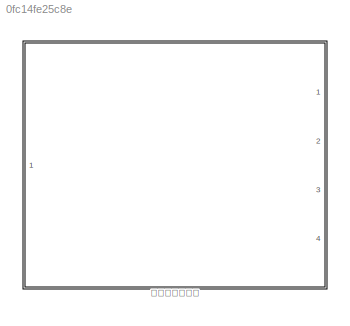
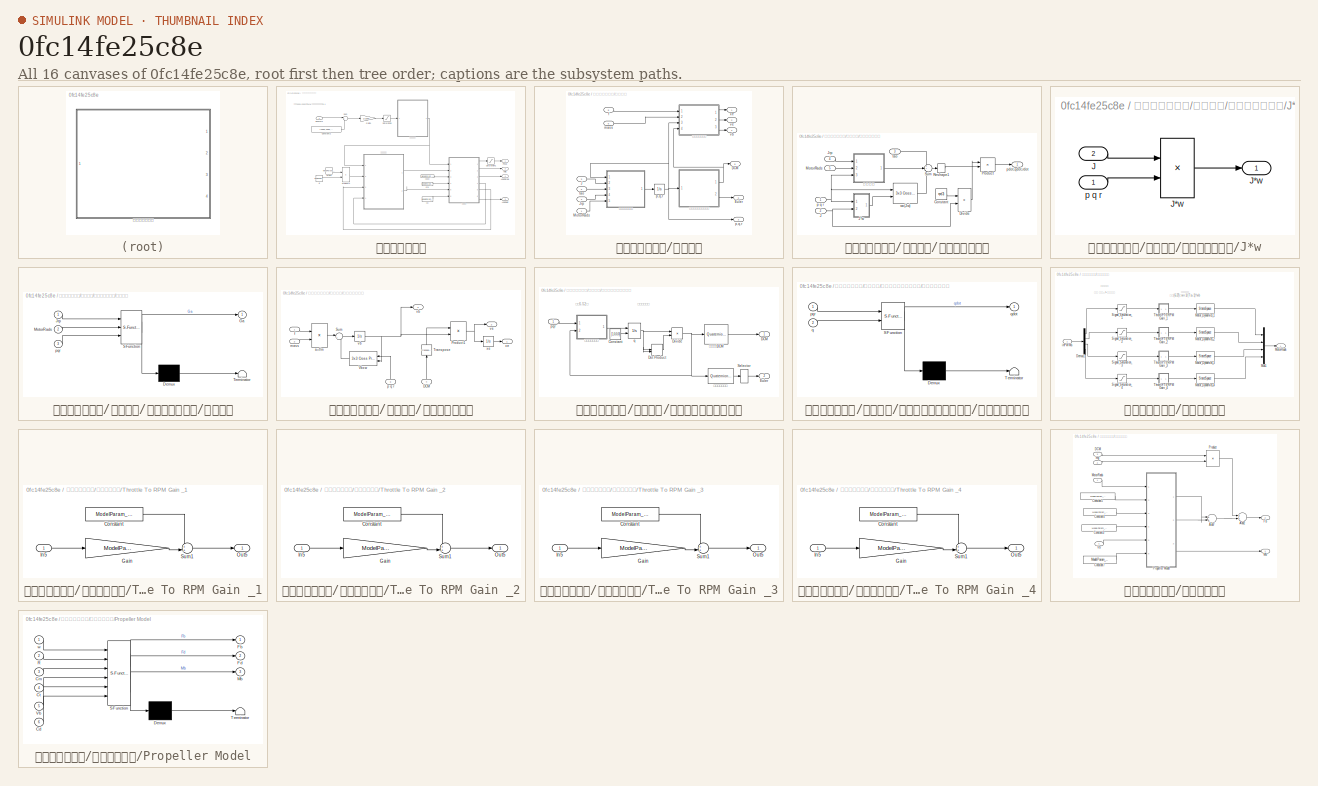
[diagram: thumbnail index - all 16 canvases of the model, root first then tree order]
MODEL slx_0fc14fe25c8e
KIND model
CONFIG AbsTol = auto
CONFIG EnableMultiTasking = off
CONFIG FixedStep = auto
CONFIG MaxStep = auto
CONFIG MinStep = auto
CONFIG RelTol = 1e-3
CONFIG SampleTimeConstraint = Unconstrained
CONFIG Solver = VariableStepAuto
CONFIG SolverName = VariableStepAuto
CONFIG StartTime = 0.0
CONFIG StopTime = 10.0
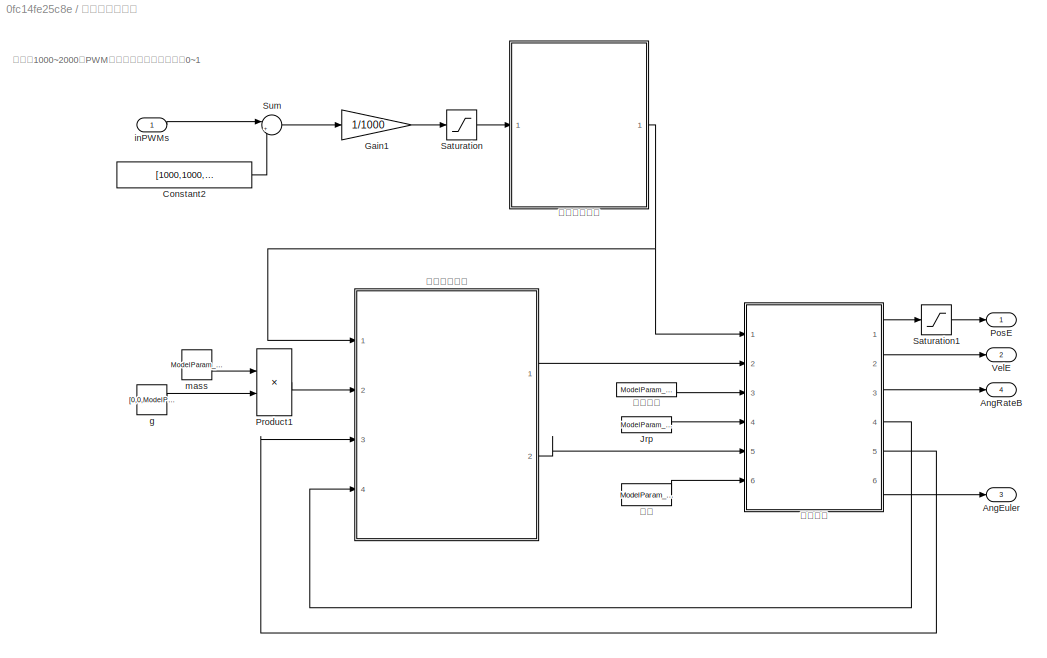
BLOCK [SubSystem] 四旋翼刚体模型
  Ports = [1, 4]
  RequestExecContextInheritance = off
  Variant = off
BLOCK [Outport] 四旋翼刚体模型/AngEuler
  IconDisplay = Port number
  Port = 3
BLOCK [Outport] 四旋翼刚体模型/AngRateB
  IconDisplay = Port number
  Port = 4
BLOCK [Constant] 四旋翼刚体模型/Constant2
  Value = [1000,1000,1000,1000]
BLOCK [Gain] 四旋翼刚体模型/Gain1
  Gain = 1/1000
  OutDataTypeStr = Inherit: Inherit via internal rule
  ParamDataTypeStr = Inherit: Inherit via internal rule
  SaturateOnIntegerOverflow = off
BLOCK [Constant] 四旋翼刚体模型/Jrp
  Value = ModelParam_motorJm
BLOCK [Outport] 四旋翼刚体模型/PosE
  IconDisplay = Port number
BLOCK [Product] 四旋翼刚体模型/Product1
  InputSameDT = off
  OutDataTypeStr = Inherit: Inherit via internal rule
  Ports = [2, 1]
  RndMeth = Floor
  SaturateOnIntegerOverflow = off
BLOCK [Saturate] 四旋翼刚体模型/Saturation
  InputPortMap = u0
  LowerLimit = 0
  Ports = [1, 1]
  UpperLimit = 1
BLOCK [Saturate] 四旋翼刚体模型/Saturation1
  InputPortMap = u0
  LowerLimit = [-inf,-inf,-inf]
  Ports = [1, 1]
  UpperLimit = [inf,inf,0]
BLOCK [Sum] 四旋翼刚体模型/Sum
  IconShape = round
  InputSameDT = off
  Inputs = |+-
  OutDataTypeStr = Inherit: Inherit via internal rule
  Ports = [2, 1]
  SaturateOnIntegerOverflow = off
BLOCK [Outport] 四旋翼刚体模型/VelE
  IconDisplay = Port number
  Port = 2
BLOCK [Constant] 四旋翼刚体模型/g
  Value = [0,0,ModelParam_envGravityAcc]
BLOCK [Inport] 四旋翼刚体模型/inPWMs
  IconDisplay = Port number
BLOCK [Constant] 四旋翼刚体模型/mass
  Value = ModelParam_uavMass
BLOCK [SubSystem] 四旋翼刚体模型/刚体模型
  Ports = [6, 6]
  RequestExecContextInheritance = off
  Variant = off
BLOCK [Outport] 四旋翼刚体模型/刚体模型/DCM
  IconDisplay = Port number
  Port = 5
BLOCK [Outport] 四旋翼刚体模型/刚体模型/Euler
  IconDisplay = Port number
  Port = 6
BLOCK [Inport] 四旋翼刚体模型/刚体模型/J
  IconDisplay = Port number
  Port = 3
BLOCK [Inport] 四旋翼刚体模型/刚体模型/Jrp
  IconDisplay = Port number
  Port = 4
BLOCK [Inport] 四旋翼刚体模型/刚体模型/MotorRads
  IconDisplay = Port number
BLOCK [Inport] 四旋翼刚体模型/刚体模型/f
  IconDisplay = Port number
  Port = 5
BLOCK [Inport] 四旋翼刚体模型/刚体模型/mass
  IconDisplay = Port number
  Port = 6
BLOCK [Integrator] 四旋翼刚体模型/刚体模型/p,q,r
  Ports = [1, 1]
BLOCK [Outport] 四旋翼刚体模型/刚体模型/p,q,r 
  IconDisplay = Port number
  Port = 3
BLOCK [Inport] 四旋翼刚体模型/刚体模型/tao
  IconDisplay = Port number
  Port = 2
BLOCK [Outport] 四旋翼刚体模型/刚体模型/vb 
  IconDisplay = Port number
  Port = 4
BLOCK [Outport] 四旋翼刚体模型/刚体模型/ve
  IconDisplay = Port number
  Port = 2
BLOCK [Outport] 四旋翼刚体模型/刚体模型/xe 
  IconDisplay = Port number
BLOCK [SubSystem] 四旋翼刚体模型/刚体模型/刚体动力学模型
  Ports = [5, 1]
  RequestExecContextInheritance = off
  Variant = off
BLOCK [Constant] 四旋翼刚体模型/刚体模型/刚体动力学模型/Constant
  Value = eye(3)
BLOCK [Product] 四旋翼刚体模型/刚体模型/刚体动力学模型/Divide
  InputSameDT = off
  Inputs = */
  Multiplication = Matrix(*)
  OutDataTypeStr = Inherit: Inherit via internal rule
  Ports = [2, 1]
  RndMeth = Floor
  SaturateOnIntegerOverflow = off
BLOCK [Inport] 四旋翼刚体模型/刚体模型/刚体动力学模型/J
  IconDisplay = Port number
  Port = 2
BLOCK [SubSystem] 四旋翼刚体模型/刚体模型/刚体动力学模型/J*w
  Ports = [2, 1]
  RequestExecContextInheritance = off
  Variant = off
BLOCK [Inport] 四旋翼刚体模型/刚体模型/刚体动力学模型/J*w/J
  IconDisplay = Port number
  Port = 2
BLOCK [Product] 四旋翼刚体模型/刚体模型/刚体动力学模型/J*w/J*w
  InputSameDT = off
  Multiplication = Matrix(*)
  OutDataTypeStr = Inherit: Inherit via internal rule
  Ports = [2, 1]
  RndMeth = Floor
  SaturateOnIntegerOverflow = off
BLOCK [Outport] 四旋翼刚体模型/刚体模型/刚体动力学模型/J*w/J*w 
  IconDisplay = Port number
BLOCK [Inport] 四旋翼刚体模型/刚体模型/刚体动力学模型/J*w/p q r
  IconDisplay = Port number
BLOCK [Inport] 四旋翼刚体模型/刚体模型/刚体动力学模型/Jrp
  IconDisplay = Port number
  Port = 4
BLOCK [Inport] 四旋翼刚体模型/刚体模型/刚体动力学模型/MotorRads
  IconDisplay = Port number
  Port = 5
BLOCK [Product] 四旋翼刚体模型/刚体模型/刚体动力学模型/Product
  InputSameDT = off
  Multiplication = Matrix(*)
  OutDataTypeStr = Inherit: Inherit via internal rule
  Ports = [2, 1]
  RndMeth = Floor
  SaturateOnIntegerOverflow = off
BLOCK [Reshape] 四旋翼刚体模型/刚体模型/刚体动力学模型/Reshape1
  OutputDimensionality = Column vector (2-D)
  Ports = [1, 1]
BLOCK [Sum] 四旋翼刚体模型/刚体模型/刚体动力学模型/Sum
  IconShape = round
  InputSameDT = off
  Inputs = 3
  OutDataTypeStr = Inherit: Inherit via internal rule
  Ports = [3, 1]
  SaturateOnIntegerOverflow = off
BLOCK [Inport] 四旋翼刚体模型/刚体模型/刚体动力学模型/p q r
  IconDisplay = Port number
BLOCK [Outport] 四旋翼刚体模型/刚体模型/刚体动力学模型/pdot,qdot,rdot
  IconDisplay = Port number
BLOCK [Inport] 四旋翼刚体模型/刚体模型/刚体动力学模型/tao
  IconDisplay = Port number
  Port = 3
BLOCK [Reference] 四旋翼刚体模型/刚体模型/刚体动力学模型/wx(Jw)  REF=aerolibutil/3x3 Cross Product
  Ports = [2, 1]
  SourceBlock = aerolibutil/3x3 Cross Product
  SourceType = CrossProduct
BLOCK [SubSystem] 四旋翼刚体模型/刚体模型/刚体动力学模型/陀螺力矩
  ErrorFcn = Stateflow.Translate.translate
  PermitHierarchicalResolution = ExplicitOnly
  Ports = [3, 1]
  RequestExecContextInheritance = off
  SFBlockType = MATLAB Function
  TreatAsAtomicUnit = on
  Variant = off
BLOCK [Demux] 四旋翼刚体模型/刚体模型/刚体动力学模型/陀螺力矩/ Demux 
  Outputs = 1
  Ports = [1, 1]
BLOCK [S-Function] 四旋翼刚体模型/刚体模型/刚体动力学模型/陀螺力矩/ SFunction 
  EnableBusSupport = on
  FunctionName = sf_sfun
  PortCounts = [3 2]
  Ports = [3, 2]
  SFcnIsStateOwnerBlock = off
  SFunctionDeploymentMode = off
  Tag = Stateflow S-Function dynamics 6
BLOCK [Terminator] 四旋翼刚体模型/刚体模型/刚体动力学模型/陀螺力矩/ Terminator 
BLOCK [Outport] 四旋翼刚体模型/刚体模型/刚体动力学模型/陀螺力矩/Ga
  IconDisplay = Port number
BLOCK [Inport] 四旋翼刚体模型/刚体模型/刚体动力学模型/陀螺力矩/Jrp
  IconDisplay = Port number
BLOCK [Inport] 四旋翼刚体模型/刚体模型/刚体动力学模型/陀螺力矩/MotorRads
  IconDisplay = Port number
  Port = 2
BLOCK [Inport] 四旋翼刚体模型/刚体模型/刚体动力学模型/陀螺力矩/pqr
  IconDisplay = Port number
  Port = 3
BLOCK [SubSystem] 四旋翼刚体模型/刚体模型/刚体运动学模型
  Ports = [4, 3]
  RequestExecContextInheritance = off
  Variant = off
BLOCK [Inport] 四旋翼刚体模型/刚体模型/刚体运动学模型/DCM
  IconDisplay = Port number
  Port = 4
BLOCK [Product] 四旋翼刚体模型/刚体模型/刚体运动学模型/Product1
  InputSameDT = off
  Multiplication = Matrix(*)
  OutDataTypeStr = Inherit: Inherit via internal rule
  Ports = [2, 1]
  RndMeth = Floor
  SaturateOnIntegerOverflow = off
BLOCK [Sum] 四旋翼刚体模型/刚体模型/刚体运动学模型/Sum
  IconShape = round
  InputSameDT = off
  Inputs = |+-
  OutDataTypeStr = Inherit: Inherit via internal rule
  Ports = [2, 1]
  SaturateOnIntegerOverflow = off
BLOCK [Math] 四旋翼刚体模型/刚体模型/刚体运动学模型/Transpose
  Operator = transpose
  Ports = [1, 1]
BLOCK [Reference] 四旋翼刚体模型/刚体模型/刚体运动学模型/Vbxw  REF=aerolibutil/3x3 Cross Product
  Ports = [2, 1]
  SourceBlock = aerolibutil/3x3 Cross Product
  SourceType = CrossProduct
BLOCK [Product] 四旋翼刚体模型/刚体模型/刚体运动学模型/a=f//m
  InputSameDT = off
  Inputs = */
  OutDataTypeStr = Inherit: Inherit via internal rule
  Ports = [2, 1]
  RndMeth = Floor
  SaturateOnIntegerOverflow = off
BLOCK [Inport] 四旋翼刚体模型/刚体模型/刚体运动学模型/f
  IconDisplay = Port number
BLOCK [Inport] 四旋翼刚体模型/刚体模型/刚体运动学模型/mass
  IconDisplay = Port number
  Port = 2
BLOCK [Inport] 四旋翼刚体模型/刚体模型/刚体运动学模型/p q r
  IconDisplay = Port number
  Port = 3
BLOCK [Integrator] 四旋翼刚体模型/刚体模型/刚体运动学模型/vb
  Ports = [1, 1]
BLOCK [Outport] 四旋翼刚体模型/刚体模型/刚体运动学模型/vb 
  IconDisplay = Port number
  Port = 3
BLOCK [Outport] 四旋翼刚体模型/刚体模型/刚体运动学模型/ve
  IconDisplay = Port number
  Port = 2
BLOCK [Integrator] 四旋翼刚体模型/刚体模型/刚体运动学模型/xe
  Ports = [1, 1]
BLOCK [Outport] 四旋翼刚体模型/刚体模型/刚体运动学模型/xe 
  IconDisplay = Port number
BLOCK [SubSystem] 四旋翼刚体模型/刚体模型/计算旋转矩阵和欧拉角
  Ports = [1, 2]
  RequestExecContextInheritance = off
  Variant = off
BLOCK [Constant] 四旋翼刚体模型/刚体模型/计算旋转矩阵和欧拉角/Constant
  Value = [1,0,0,0]
BLOCK [Outport] 四旋翼刚体模型/刚体模型/计算旋转矩阵和欧拉角/DCM
  IconDisplay = Port number
BLOCK [Product] 四旋翼刚体模型/刚体模型/计算旋转矩阵和欧拉角/Divide
  InputSameDT = off
  Inputs = */
  OutDataTypeStr = Inherit: Inherit via internal rule
  Ports = [2, 1]
  RndMeth = Floor
  SaturateOnIntegerOverflow = off
BLOCK [DotProduct] 四旋翼刚体模型/刚体模型/计算旋转矩阵和欧拉角/Dot Product
  OutDataTypeStr = Inherit: Inherit via internal rule
BLOCK [Outport] 四旋翼刚体模型/刚体模型/计算旋转矩阵和欧拉角/Euler
  IconDisplay = Port number
  Port = 2
BLOCK [Selector] 四旋翼刚体模型/刚体模型/计算旋转矩阵和欧拉角/Selector
  IndexOptions = Index vector (dialog)
  Indices = [3 2 1]
  InputPortWidth = 3
  OutputSizes = 1
  Ports = [1, 1]
BLOCK [Inport] 四旋翼刚体模型/刚体模型/计算旋转矩阵和欧拉角/pqr
  IconDisplay = Port number
BLOCK [Integrator] 四旋翼刚体模型/刚体模型/计算旋转矩阵和欧拉角/q
  InitialConditionSource = external
  Ports = [2, 1]
BLOCK [Reference] 四旋翼刚体模型/刚体模型/计算旋转矩阵和欧拉角/四元数转DCM  REF=aerolibtransform2/Quaternions to 
Direction Cosine Matrix
  Ports = [1, 1]
  SourceBlock = aerolibtransform2/Quaternions to \nDirection Cosine Matrix
  SourceType = Quaternion2DCM
BLOCK [Reference] 四旋翼刚体模型/刚体模型/计算旋转矩阵和欧拉角/四元数转欧拉角  REF=aerolibtransform2/Quaternions to Rotation Angles
  AttributesFormatString = Rotation Order: %<rotationOrder>
  Ports = [1, 1]
  SourceBlock = aerolibtransform2/Quaternions to Rotation Angles
  SourceType = Quat2Ang
BLOCK [SubSystem] 四旋翼刚体模型/刚体模型/计算旋转矩阵和欧拉角/基于四元数模型
  ErrorFcn = Stateflow.Translate.translate
  PermitHierarchicalResolution = ExplicitOnly
  Ports = [2, 1]
  RequestExecContextInheritance = off
  SFBlockType = MATLAB Function
  TreatAsAtomicUnit = on
  Variant = off
BLOCK [Demux] 四旋翼刚体模型/刚体模型/计算旋转矩阵和欧拉角/基于四元数模型/ Demux 
  Outputs = 1
  Ports = [1, 1]
BLOCK [S-Function] 四旋翼刚体模型/刚体模型/计算旋转矩阵和欧拉角/基于四元数模型/ SFunction 
  EnableBusSupport = on
  FunctionName = sf_sfun
  PortCounts = [2 2]
  Ports = [2, 2]
  SFcnIsStateOwnerBlock = off
  SFunctionDeploymentMode = off
  Tag = Stateflow S-Function dynamics 5
BLOCK [Terminator] 四旋翼刚体模型/刚体模型/计算旋转矩阵和欧拉角/基于四元数模型/ Terminator 
BLOCK [Inport] 四旋翼刚体模型/刚体模型/计算旋转矩阵和欧拉角/基于四元数模型/pqr
  IconDisplay = Port number
BLOCK [Inport] 四旋翼刚体模型/刚体模型/计算旋转矩阵和欧拉角/基于四元数模型/q
  IconDisplay = Port number
  Port = 2
BLOCK [Outport] 四旋翼刚体模型/刚体模型/计算旋转矩阵和欧拉角/基于四元数模型/qdot
  IconDisplay = Port number
BLOCK [SubSystem] 四旋翼刚体模型/动力单元模型
  Ports = [1, 1]
  RequestExecContextInheritance = off
  Variant = off
BLOCK [Demux] 四旋翼刚体模型/动力单元模型/Demux1
  DisplayOption = bar
  Ports = [1, 4]
BLOCK [Outport] 四旋翼刚体模型/动力单元模型/MotorRads
  IconDisplay = Port number
BLOCK [StateSpace] 四旋翼刚体模型/动力单元模型/Motor_Dynamics_1
  A = -1/ModelParam_motorT
  C = 1/ModelParam_motorT
  D = 0
  Ports = [1, 1]
  X0 = ModelInit_RPM*ModelParam_motorT
BLOCK [StateSpace] 四旋翼刚体模型/动力单元模型/Motor_Dynamics_2
  A = -1/ModelParam_motorT
  C = 1/ModelParam_motorT
  D = 0
  Ports = [1, 1]
  X0 = ModelInit_RPM*ModelParam_motorT
BLOCK [StateSpace] 四旋翼刚体模型/动力单元模型/Motor_Dynamics_3
  A = -1/ModelParam_motorT
  C = 1/ModelParam_motorT
  D = 0
  Ports = [1, 1]
  X0 = ModelInit_RPM*ModelParam_motorT
BLOCK [StateSpace] 四旋翼刚体模型/动力单元模型/Motor_Dynamics_4
  A = -1/ModelParam_motorT
  C = 1/ModelParam_motorT
  D = 0
  Ports = [1, 1]
  X0 = ModelInit_RPM*ModelParam_motorT
BLOCK [Mux] 四旋翼刚体模型/动力单元模型/Mux1
  DisplayOption = bar
  Ports = [4, 1]
BLOCK [Saturate] 四旋翼刚体模型/动力单元模型/Signal_Saturation_1
  InputPortMap = u0
  LowerLimit = 0
  Ports = [1, 1]
  UpperLimit = 1
BLOCK [Saturate] 四旋翼刚体模型/动力单元模型/Signal_Saturation_2
  InputPortMap = u0
  LowerLimit = 0
  Ports = [1, 1]
  UpperLimit = 1
BLOCK [Saturate] 四旋翼刚体模型/动力单元模型/Signal_Saturation_3
  InputPortMap = u0
  LowerLimit = 0
  Ports = [1, 1]
  UpperLimit = 1
BLOCK [Saturate] 四旋翼刚体模型/动力单元模型/Signal_Saturation_4
  InputPortMap = u0
  LowerLimit = 0
  Ports = [1, 1]
  UpperLimit = 1
BLOCK [SubSystem] 四旋翼刚体模型/动力单元模型/Throttle To RPM Gain _1
  Ports = [1, 1]
  RequestExecContextInheritance = off
  ShowPortLabels = none
  Variant = off
BLOCK [Constant] 四旋翼刚体模型/动力单元模型/Throttle To RPM Gain _1/Constant
  Value = ModelParam_motorWb
BLOCK [Gain] 四旋翼刚体模型/动力单元模型/Throttle To RPM Gain _1/Gain
  Gain = ModelParam_motorCr
  OutDataTypeStr = Inherit: Inherit via internal rule
  ParamDataTypeStr = Inherit: Inherit via internal rule
  SaturateOnIntegerOverflow = off
BLOCK [Inport] 四旋翼刚体模型/动力单元模型/Throttle To RPM Gain _1/In5
  IconDisplay = Port number
BLOCK [Outport] 四旋翼刚体模型/动力单元模型/Throttle To RPM Gain _1/Out5
  IconDisplay = Port number
BLOCK [Sum] 四旋翼刚体模型/动力单元模型/Throttle To RPM Gain _1/Sum1
  IconShape = round
  InputSameDT = off
  Inputs = ++|
  OutDataTypeStr = Inherit: Inherit via internal rule
  Ports = [2, 1]
  SaturateOnIntegerOverflow = off
BLOCK [SubSystem] 四旋翼刚体模型/动力单元模型/Throttle To RPM Gain _2
  Ports = [1, 1]
  RequestExecContextInheritance = off
  ShowPortLabels = none
  Variant = off
BLOCK [Constant] 四旋翼刚体模型/动力单元模型/Throttle To RPM Gain _2/Constant
  Value = ModelParam_motorWb
BLOCK [Gain] 四旋翼刚体模型/动力单元模型/Throttle To RPM Gain _2/Gain
  Gain = ModelParam_motorCr
  OutDataTypeStr = Inherit: Inherit via internal rule
  ParamDataTypeStr = Inherit: Inherit via internal rule
  SaturateOnIntegerOverflow = off
BLOCK [Inport] 四旋翼刚体模型/动力单元模型/Throttle To RPM Gain _2/In5
  IconDisplay = Port number
BLOCK [Outport] 四旋翼刚体模型/动力单元模型/Throttle To RPM Gain _2/Out5
  IconDisplay = Port number
BLOCK [Sum] 四旋翼刚体模型/动力单元模型/Throttle To RPM Gain _2/Sum1
  IconShape = round
  InputSameDT = off
  Inputs = ++|
  OutDataTypeStr = Inherit: Inherit via internal rule
  Ports = [2, 1]
  SaturateOnIntegerOverflow = off
BLOCK [SubSystem] 四旋翼刚体模型/动力单元模型/Throttle To RPM Gain _3
  Ports = [1, 1]
  RequestExecContextInheritance = off
  ShowPortLabels = none
  Variant = off
BLOCK [Constant] 四旋翼刚体模型/动力单元模型/Throttle To RPM Gain _3/Constant
  Value = ModelParam_motorWb
BLOCK [Gain] 四旋翼刚体模型/动力单元模型/Throttle To RPM Gain _3/Gain
  Gain = ModelParam_motorCr
  OutDataTypeStr = Inherit: Inherit via internal rule
  ParamDataTypeStr = Inherit: Inherit via internal rule
  SaturateOnIntegerOverflow = off
BLOCK [Inport] 四旋翼刚体模型/动力单元模型/Throttle To RPM Gain _3/In5
  IconDisplay = Port number
BLOCK [Outport] 四旋翼刚体模型/动力单元模型/Throttle To RPM Gain _3/Out5
  IconDisplay = Port number
BLOCK [Sum] 四旋翼刚体模型/动力单元模型/Throttle To RPM Gain _3/Sum1
  IconShape = round
  InputSameDT = off
  Inputs = ++|
  OutDataTypeStr = Inherit: Inherit via internal rule
  Ports = [2, 1]
  SaturateOnIntegerOverflow = off
BLOCK [SubSystem] 四旋翼刚体模型/动力单元模型/Throttle To RPM Gain _4
  Ports = [1, 1]
  RequestExecContextInheritance = off
  ShowPortLabels = none
  Variant = off
BLOCK [Constant] 四旋翼刚体模型/动力单元模型/Throttle To RPM Gain _4/Constant
  Value = ModelParam_motorWb
BLOCK [Gain] 四旋翼刚体模型/动力单元模型/Throttle To RPM Gain _4/Gain
  Gain = ModelParam_motorCr
  OutDataTypeStr = Inherit: Inherit via internal rule
  ParamDataTypeStr = Inherit: Inherit via internal rule
  SaturateOnIntegerOverflow = off
BLOCK [Inport] 四旋翼刚体模型/动力单元模型/Throttle To RPM Gain _4/In5
  IconDisplay = Port number
BLOCK [Outport] 四旋翼刚体模型/动力单元模型/Throttle To RPM Gain _4/Out5
  IconDisplay = Port number
BLOCK [Sum] 四旋翼刚体模型/动力单元模型/Throttle To RPM Gain _4/Sum1
  IconShape = round
  InputSameDT = off
  Inputs = ++|
  OutDataTypeStr = Inherit: Inherit via internal rule
  Ports = [2, 1]
  SaturateOnIntegerOverflow = off
BLOCK [Inport] 四旋翼刚体模型/动力单元模型/inPWMs
  IconDisplay = Port number
BLOCK [SubSystem] 四旋翼刚体模型/控制效率模型
  Ports = [4, 2]
  RequestExecContextInheritance = off
  Variant = off
BLOCK [Sum] 四旋翼刚体模型/控制效率模型/Add2
  InputSameDT = off
  OutDataTypeStr = Inherit: Inherit via internal rule
  Ports = [2, 1]
  SaturateOnIntegerOverflow = off
BLOCK [Sum] 四旋翼刚体模型/控制效率模型/Add7
  InputSameDT = off
  OutDataTypeStr = Inherit: Inherit via internal rule
  Ports = [2, 1]
  SaturateOnIntegerOverflow = off
BLOCK [Constant] 四旋翼刚体模型/控制效率模型/Constant3
  Value = ModelParam_rotorCt
BLOCK [Constant] 四旋翼刚体模型/控制效率模型/Constant4
  Value = ModelParam_rotorCm
BLOCK [Constant] 四旋翼刚体模型/控制效率模型/Constant5
  Value = ModelParam_uavR
BLOCK [Constant] 四旋翼刚体模型/控制效率模型/Constant7
  Value = ModelParam_uavCd
BLOCK [Inport] 四旋翼刚体模型/控制效率模型/DCM
  IconDisplay = Port number
  Port = 3
BLOCK [Outport] 四旋翼刚体模型/控制效率模型/Fb
  IconDisplay = Port number
  Port = 2
BLOCK [Outport] 四旋翼刚体模型/控制效率模型/Mb
  IconDisplay = Port number
BLOCK [Inport] 四旋翼刚体模型/控制效率模型/MotorRads
  IconDisplay = Port number
BLOCK [Product] 四旋翼刚体模型/控制效率模型/Product
  InputSameDT = off
  Multiplication = Matrix(*)
  OutDataTypeStr = Inherit: Inherit via internal rule
  Ports = [2, 1]
  RndMeth = Floor
  SaturateOnIntegerOverflow = off
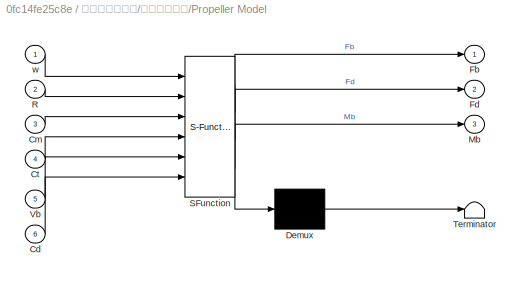
BLOCK [SubSystem] 四旋翼刚体模型/控制效率模型/Propeller Model
  ErrorFcn = Stateflow.Translate.translate
  PermitHierarchicalResolution = ExplicitOnly
  Ports = [6, 3]
  RequestExecContextInheritance = off
  SFBlockType = MATLAB Function
  TreatAsAtomicUnit = on
  Variant = off
BLOCK [Demux] 四旋翼刚体模型/控制效率模型/Propeller Model/ Demux 
  Outputs = 1
  Ports = [1, 1]
BLOCK [S-Function] 四旋翼刚体模型/控制效率模型/Propeller Model/ SFunction 
  EnableBusSupport = on
  FunctionName = sf_sfun
  PortCounts = [6 4]
  Ports = [6, 4]
  SFcnIsStateOwnerBlock = off
  SFunctionDeploymentMode = off
  Tag = Stateflow S-Function dynamics 7
BLOCK [Terminator] 四旋翼刚体模型/控制效率模型/Propeller Model/ Terminator 
BLOCK [Inport] 四旋翼刚体模型/控制效率模型/Propeller Model/Cd
  IconDisplay = Port number
  Port = 6
BLOCK [Inport] 四旋翼刚体模型/控制效率模型/Propeller Model/Cm
  IconDisplay = Port number
  Port = 3
BLOCK [Inport] 四旋翼刚体模型/控制效率模型/Propeller Model/Ct
  IconDisplay = Port number
  Port = 4
BLOCK [Outport] 四旋翼刚体模型/控制效率模型/Propeller Model/Fb
  IconDisplay = Port number
BLOCK [Outport] 四旋翼刚体模型/控制效率模型/Propeller Model/Fd
  IconDisplay = Port number
  Port = 2
BLOCK [Outport] 四旋翼刚体模型/控制效率模型/Propeller Model/Mb
  IconDisplay = Port number
  Port = 3
BLOCK [Inport] 四旋翼刚体模型/控制效率模型/Propeller Model/R
  IconDisplay = Port number
  Port = 2
BLOCK [Inport] 四旋翼刚体模型/控制效率模型/Propeller Model/Vb
  IconDisplay = Port number
  Port = 5
BLOCK [Inport] 四旋翼刚体模型/控制效率模型/Propeller Model/w
  IconDisplay = Port number
BLOCK [Inport] 四旋翼刚体模型/控制效率模型/Vb
  IconDisplay = Port number
  Port = 4
BLOCK [Inport] 四旋翼刚体模型/控制效率模型/mg
  IconDisplay = Port number
  Port = 2
BLOCK [Constant] 四旋翼刚体模型/质量
  Value = ModelParam_uavMass
BLOCK [Constant] 四旋翼刚体模型/转动惯量
  Value = ModelParam_uavJ
ANNOTATION 四旋翼刚体模型: 输入是1000~2000的PWM信号，需要将其归一化到0~1
ANNOTATION 四旋翼刚体模型/刚体模型/计算旋转矩阵和欧拉角: 四元数归一化
ANNOTATION 四旋翼刚体模型/刚体模型/计算旋转矩阵和欧拉角: 式（5.52）
ANNOTATION 四旋翼刚体模型/动力单元模型: 一号电机 饱和 油门-->电机转速
ANNOTATION 四旋翼刚体模型/动力单元模型: 电机动态 公式(6.27)：w=1/(Ts+1)*wb
LINE 四旋翼刚体模型/Constant2:1 -> 四旋翼刚体模型/Sum:2
LINE 四旋翼刚体模型/Gain1:1 -> 四旋翼刚体模型/Saturation:1
LINE 四旋翼刚体模型/Jrp:1 -> 四旋翼刚体模型/刚体模型:4
LINE 四旋翼刚体模型/Product1:1 -> 四旋翼刚体模型/控制效率模型:2
LINE 四旋翼刚体模型/Saturation1:1 -> 四旋翼刚体模型/PosE:1
LINE 四旋翼刚体模型/Saturation:1 -> 四旋翼刚体模型/动力单元模型:1
LINE 四旋翼刚体模型/Sum:1 -> 四旋翼刚体模型/Gain1:1
LINE 四旋翼刚体模型/g:1 -> 四旋翼刚体模型/Product1:2
LINE 四旋翼刚体模型/inPWMs:1 -> 四旋翼刚体模型/Sum:1
LINE 四旋翼刚体模型/mass:1 -> 四旋翼刚体模型/Product1:1
LINE 四旋翼刚体模型/刚体模型/J:1 -> 四旋翼刚体模型/刚体模型/刚体动力学模型:2
LINE 四旋翼刚体模型/刚体模型/Jrp:1 -> 四旋翼刚体模型/刚体模型/刚体动力学模型:4
LINE 四旋翼刚体模型/刚体模型/MotorRads:1 -> 四旋翼刚体模型/刚体模型/刚体动力学模型:5
LINE 四旋翼刚体模型/刚体模型/f:1 -> 四旋翼刚体模型/刚体模型/刚体运动学模型:1
LINE 四旋翼刚体模型/刚体模型/mass:1 -> 四旋翼刚体模型/刚体模型/刚体运动学模型:2
NET 四旋翼刚体模型/刚体模型/p,q,r:1 -> 四旋翼刚体模型/刚体模型/p,q,r :1, 四旋翼刚体模型/刚体模型/刚体动力学模型:1, 四旋翼刚体模型/刚体模型/刚体运动学模型:3, 四旋翼刚体模型/刚体模型/计算旋转矩阵和欧拉角:1
LINE 四旋翼刚体模型/刚体模型/tao:1 -> 四旋翼刚体模型/刚体模型/刚体动力学模型:3
LINE 四旋翼刚体模型/刚体模型/刚体动力学模型/Constant:1 -> 四旋翼刚体模型/刚体模型/刚体动力学模型/Divide:1
LINE 四旋翼刚体模型/刚体模型/刚体动力学模型/Divide:1 -> 四旋翼刚体模型/刚体模型/刚体动力学模型/Product:1
LINE 四旋翼刚体模型/刚体模型/刚体动力学模型/J*w/J*w:1 -> 四旋翼刚体模型/刚体模型/刚体动力学模型/J*w/J*w :1
LINE 四旋翼刚体模型/刚体模型/刚体动力学模型/J*w/J:1 -> 四旋翼刚体模型/刚体模型/刚体动力学模型/J*w/J*w:1
LINE 四旋翼刚体模型/刚体模型/刚体动力学模型/J*w/p q r:1 -> 四旋翼刚体模型/刚体模型/刚体动力学模型/J*w/J*w:2
LINE 四旋翼刚体模型/刚体模型/刚体动力学模型/J*w:1 -> 四旋翼刚体模型/刚体模型/刚体动力学模型/wx(Jw):2
NET 四旋翼刚体模型/刚体模型/刚体动力学模型/J:1 -> 四旋翼刚体模型/刚体模型/刚体动力学模型/Divide:2, 四旋翼刚体模型/刚体模型/刚体动力学模型/J*w:2
LINE 四旋翼刚体模型/刚体模型/刚体动力学模型/Jrp:1 -> 四旋翼刚体模型/刚体模型/刚体动力学模型/陀螺力矩:1
LINE 四旋翼刚体模型/刚体模型/刚体动力学模型/MotorRads:1 -> 四旋翼刚体模型/刚体模型/刚体动力学模型/陀螺力矩:2
LINE 四旋翼刚体模型/刚体模型/刚体动力学模型/Product:1 -> 四旋翼刚体模型/刚体模型/刚体动力学模型/pdot,qdot,rdot:1
LINE 四旋翼刚体模型/刚体模型/刚体动力学模型/Reshape1:1 -> 四旋翼刚体模型/刚体模型/刚体动力学模型/Product:2
LINE 四旋翼刚体模型/刚体模型/刚体动力学模型/Sum:1 -> 四旋翼刚体模型/刚体模型/刚体动力学模型/Reshape1:1
NET 四旋翼刚体模型/刚体模型/刚体动力学模型/p q r:1 -> 四旋翼刚体模型/刚体模型/刚体动力学模型/J*w:1, 四旋翼刚体模型/刚体模型/刚体动力学模型/wx(Jw):1, 四旋翼刚体模型/刚体模型/刚体动力学模型/陀螺力矩:3
LINE 四旋翼刚体模型/刚体模型/刚体动力学模型/tao:1 -> 四旋翼刚体模型/刚体模型/刚体动力学模型/Sum:1
LINE 四旋翼刚体模型/刚体模型/刚体动力学模型/wx(Jw):1 -> 四旋翼刚体模型/刚体模型/刚体动力学模型/Sum:3
LINE 四旋翼刚体模型/刚体模型/刚体动力学模型/陀螺力矩:1 -> 四旋翼刚体模型/刚体模型/刚体动力学模型/Sum:2
LINE 四旋翼刚体模型/刚体模型/刚体动力学模型:1 -> 四旋翼刚体模型/刚体模型/p,q,r:1
LINE 四旋翼刚体模型/刚体模型/刚体运动学模型/DCM:1 -> 四旋翼刚体模型/刚体模型/刚体运动学模型/Transpose:1
NET 四旋翼刚体模型/刚体模型/刚体运动学模型/Product1:1 -> 四旋翼刚体模型/刚体模型/刚体运动学模型/ve:1, 四旋翼刚体模型/刚体模型/刚体运动学模型/xe:1
LINE 四旋翼刚体模型/刚体模型/刚体运动学模型/Sum:1 -> 四旋翼刚体模型/刚体模型/刚体运动学模型/vb:1
LINE 四旋翼刚体模型/刚体模型/刚体运动学模型/Transpose:1 -> 四旋翼刚体模型/刚体模型/刚体运动学模型/Product1:1
LINE 四旋翼刚体模型/刚体模型/刚体运动学模型/Vbxw:1 -> 四旋翼刚体模型/刚体模型/刚体运动学模型/Sum:2
LINE 四旋翼刚体模型/刚体模型/刚体运动学模型/a=f//m:1 -> 四旋翼刚体模型/刚体模型/刚体运动学模型/Sum:1
LINE 四旋翼刚体模型/刚体模型/刚体运动学模型/f:1 -> 四旋翼刚体模型/刚体模型/刚体运动学模型/a=f//m:1
LINE 四旋翼刚体模型/刚体模型/刚体运动学模型/mass:1 -> 四旋翼刚体模型/刚体模型/刚体运动学模型/a=f//m:2
LINE 四旋翼刚体模型/刚体模型/刚体运动学模型/p q r:1 -> 四旋翼刚体模型/刚体模型/刚体运动学模型/Vbxw:1
NET 四旋翼刚体模型/刚体模型/刚体运动学模型/vb:1 -> 四旋翼刚体模型/刚体模型/刚体运动学模型/Product1:2, 四旋翼刚体模型/刚体模型/刚体运动学模型/Vbxw:2, 四旋翼刚体模型/刚体模型/刚体运动学模型/vb :1
LINE 四旋翼刚体模型/刚体模型/刚体运动学模型/xe:1 -> 四旋翼刚体模型/刚体模型/刚体运动学模型/xe :1
LINE 四旋翼刚体模型/刚体模型/刚体运动学模型:1 -> 四旋翼刚体模型/刚体模型/xe :1
LINE 四旋翼刚体模型/刚体模型/刚体运动学模型:2 -> 四旋翼刚体模型/刚体模型/ve:1
LINE 四旋翼刚体模型/刚体模型/刚体运动学模型:3 -> 四旋翼刚体模型/刚体模型/vb :1
LINE 四旋翼刚体模型/刚体模型/计算旋转矩阵和欧拉角/Constant:1 -> 四旋翼刚体模型/刚体模型/计算旋转矩阵和欧拉角/q:2
NET 四旋翼刚体模型/刚体模型/计算旋转矩阵和欧拉角/Divide:1 -> 四旋翼刚体模型/刚体模型/计算旋转矩阵和欧拉角/四元数转DCM:1, 四旋翼刚体模型/刚体模型/计算旋转矩阵和欧拉角/四元数转欧拉角:1, 四旋翼刚体模型/刚体模型/计算旋转矩阵和欧拉角/基于四元数模型:2
LINE 四旋翼刚体模型/刚体模型/计算旋转矩阵和欧拉角/Dot Product:1 -> 四旋翼刚体模型/刚体模型/计算旋转矩阵和欧拉角/Divide:2
LINE 四旋翼刚体模型/刚体模型/计算旋转矩阵和欧拉角/Selector:1 -> 四旋翼刚体模型/刚体模型/计算旋转矩阵和欧拉角/Euler:1
LINE 四旋翼刚体模型/刚体模型/计算旋转矩阵和欧拉角/pqr:1 -> 四旋翼刚体模型/刚体模型/计算旋转矩阵和欧拉角/基于四元数模型:1
NET 四旋翼刚体模型/刚体模型/计算旋转矩阵和欧拉角/q:1 -> 四旋翼刚体模型/刚体模型/计算旋转矩阵和欧拉角/Divide:1, 四旋翼刚体模型/刚体模型/计算旋转矩阵和欧拉角/Dot Product:1, 四旋翼刚体模型/刚体模型/计算旋转矩阵和欧拉角/Dot Product:2
LINE 四旋翼刚体模型/刚体模型/计算旋转矩阵和欧拉角/四元数转DCM:1 -> 四旋翼刚体模型/刚体模型/计算旋转矩阵和欧拉角/DCM:1
LINE 四旋翼刚体模型/刚体模型/计算旋转矩阵和欧拉角/四元数转欧拉角:1 -> 四旋翼刚体模型/刚体模型/计算旋转矩阵和欧拉角/Selector:1
LINE 四旋翼刚体模型/刚体模型/计算旋转矩阵和欧拉角/基于四元数模型:1 -> 四旋翼刚体模型/刚体模型/计算旋转矩阵和欧拉角/q:1
NET 四旋翼刚体模型/刚体模型/计算旋转矩阵和欧拉角:1 -> 四旋翼刚体模型/刚体模型/DCM:1, 四旋翼刚体模型/刚体模型/刚体运动学模型:4
LINE 四旋翼刚体模型/刚体模型/计算旋转矩阵和欧拉角:2 -> 四旋翼刚体模型/刚体模型/Euler:1
LINE 四旋翼刚体模型/刚体模型:1 -> 四旋翼刚体模型/Saturation1:1
LINE 四旋翼刚体模型/刚体模型:2 -> 四旋翼刚体模型/VelE:1
LINE 四旋翼刚体模型/刚体模型:3 -> 四旋翼刚体模型/AngRateB:1
LINE 四旋翼刚体模型/刚体模型:4 -> 四旋翼刚体模型/控制效率模型:4
LINE 四旋翼刚体模型/刚体模型:5 -> 四旋翼刚体模型/控制效率模型:3
LINE 四旋翼刚体模型/刚体模型:6 -> 四旋翼刚体模型/AngEuler:1
LINE 四旋翼刚体模型/动力单元模型/Demux1:1 -> 四旋翼刚体模型/动力单元模型/Signal_Saturation_1:1
LINE 四旋翼刚体模型/动力单元模型/Demux1:2 -> 四旋翼刚体模型/动力单元模型/Signal_Saturation_2:1
LINE 四旋翼刚体模型/动力单元模型/Demux1:3 -> 四旋翼刚体模型/动力单元模型/Signal_Saturation_3:1
LINE 四旋翼刚体模型/动力单元模型/Demux1:4 -> 四旋翼刚体模型/动力单元模型/Signal_Saturation_4:1
LINE 四旋翼刚体模型/动力单元模型/Motor_Dynamics_1:1 -> 四旋翼刚体模型/动力单元模型/Mux1:1
LINE 四旋翼刚体模型/动力单元模型/Motor_Dynamics_2:1 -> 四旋翼刚体模型/动力单元模型/Mux1:2
LINE 四旋翼刚体模型/动力单元模型/Motor_Dynamics_3:1 -> 四旋翼刚体模型/动力单元模型/Mux1:3
LINE 四旋翼刚体模型/动力单元模型/Motor_Dynamics_4:1 -> 四旋翼刚体模型/动力单元模型/Mux1:4
LINE 四旋翼刚体模型/动力单元模型/Mux1:1 -> 四旋翼刚体模型/动力单元模型/MotorRads:1
LINE 四旋翼刚体模型/动力单元模型/Signal_Saturation_1:1 -> 四旋翼刚体模型/动力单元模型/Throttle To RPM Gain _1:1
LINE 四旋翼刚体模型/动力单元模型/Signal_Saturation_2:1 -> 四旋翼刚体模型/动力单元模型/Throttle To RPM Gain _2:1
LINE 四旋翼刚体模型/动力单元模型/Signal_Saturation_3:1 -> 四旋翼刚体模型/动力单元模型/Throttle To RPM Gain _3:1
LINE 四旋翼刚体模型/动力单元模型/Signal_Saturation_4:1 -> 四旋翼刚体模型/动力单元模型/Throttle To RPM Gain _4:1
LINE 四旋翼刚体模型/动力单元模型/Throttle To RPM Gain _1/Constant:1 -> 四旋翼刚体模型/动力单元模型/Throttle To RPM Gain _1/Sum1:1
LINE 四旋翼刚体模型/动力单元模型/Throttle To RPM Gain _1/Gain:1 -> 四旋翼刚体模型/动力单元模型/Throttle To RPM Gain _1/Sum1:2
LINE 四旋翼刚体模型/动力单元模型/Throttle To RPM Gain _1/In5:1 -> 四旋翼刚体模型/动力单元模型/Throttle To RPM Gain _1/Gain:1
LINE 四旋翼刚体模型/动力单元模型/Throttle To RPM Gain _1/Sum1:1 -> 四旋翼刚体模型/动力单元模型/Throttle To RPM Gain _1/Out5:1
LINE 四旋翼刚体模型/动力单元模型/Throttle To RPM Gain _1:1 -> 四旋翼刚体模型/动力单元模型/Motor_Dynamics_1:1
LINE 四旋翼刚体模型/动力单元模型/Throttle To RPM Gain _2/Constant:1 -> 四旋翼刚体模型/动力单元模型/Throttle To RPM Gain _2/Sum1:1
LINE 四旋翼刚体模型/动力单元模型/Throttle To RPM Gain _2/Gain:1 -> 四旋翼刚体模型/动力单元模型/Throttle To RPM Gain _2/Sum1:2
LINE 四旋翼刚体模型/动力单元模型/Throttle To RPM Gain _2/In5:1 -> 四旋翼刚体模型/动力单元模型/Throttle To RPM Gain _2/Gain:1
LINE 四旋翼刚体模型/动力单元模型/Throttle To RPM Gain _2/Sum1:1 -> 四旋翼刚体模型/动力单元模型/Throttle To RPM Gain _2/Out5:1
LINE 四旋翼刚体模型/动力单元模型/Throttle To RPM Gain _2:1 -> 四旋翼刚体模型/动力单元模型/Motor_Dynamics_2:1
LINE 四旋翼刚体模型/动力单元模型/Throttle To RPM Gain _3/Constant:1 -> 四旋翼刚体模型/动力单元模型/Throttle To RPM Gain _3/Sum1:1
LINE 四旋翼刚体模型/动力单元模型/Throttle To RPM Gain _3/Gain:1 -> 四旋翼刚体模型/动力单元模型/Throttle To RPM Gain _3/Sum1:2
LINE 四旋翼刚体模型/动力单元模型/Throttle To RPM Gain _3/In5:1 -> 四旋翼刚体模型/动力单元模型/Throttle To RPM Gain _3/Gain:1
LINE 四旋翼刚体模型/动力单元模型/Throttle To RPM Gain _3/Sum1:1 -> 四旋翼刚体模型/动力单元模型/Throttle To RPM Gain _3/Out5:1
LINE 四旋翼刚体模型/动力单元模型/Throttle To RPM Gain _3:1 -> 四旋翼刚体模型/动力单元模型/Motor_Dynamics_3:1
LINE 四旋翼刚体模型/动力单元模型/Throttle To RPM Gain _4/Constant:1 -> 四旋翼刚体模型/动力单元模型/Throttle To RPM Gain _4/Sum1:1
LINE 四旋翼刚体模型/动力单元模型/Throttle To RPM Gain _4/Gain:1 -> 四旋翼刚体模型/动力单元模型/Throttle To RPM Gain _4/Sum1:2
LINE 四旋翼刚体模型/动力单元模型/Throttle To RPM Gain _4/In5:1 -> 四旋翼刚体模型/动力单元模型/Throttle To RPM Gain _4/Gain:1
LINE 四旋翼刚体模型/动力单元模型/Throttle To RPM Gain _4/Sum1:1 -> 四旋翼刚体模型/动力单元模型/Throttle To RPM Gain _4/Out5:1
LINE 四旋翼刚体模型/动力单元模型/Throttle To RPM Gain _4:1 -> 四旋翼刚体模型/动力单元模型/Motor_Dynamics_4:1
LINE 四旋翼刚体模型/动力单元模型/inPWMs:1 -> 四旋翼刚体模型/动力单元模型/Demux1:1
NET 四旋翼刚体模型/动力单元模型:1 -> 四旋翼刚体模型/刚体模型:1, 四旋翼刚体模型/控制效率模型:1
LINE 四旋翼刚体模型/控制效率模型/Add2:1 -> 四旋翼刚体模型/控制效率模型/Fb:1
LINE 四旋翼刚体模型/控制效率模型/Add7:1 -> 四旋翼刚体模型/控制效率模型/Add2:2
LINE 四旋翼刚体模型/控制效率模型/Constant3:1 -> 四旋翼刚体模型/控制效率模型/Propeller Model:4
LINE 四旋翼刚体模型/控制效率模型/Constant4:1 -> 四旋翼刚体模型/控制效率模型/Propeller Model:3
LINE 四旋翼刚体模型/控制效率模型/Constant5:1 -> 四旋翼刚体模型/控制效率模型/Propeller Model:2
LINE 四旋翼刚体模型/控制效率模型/Constant7:1 -> 四旋翼刚体模型/控制效率模型/Propeller Model:6
LINE 四旋翼刚体模型/控制效率模型/DCM:1 -> 四旋翼刚体模型/控制效率模型/Product:1
LINE 四旋翼刚体模型/控制效率模型/MotorRads:1 -> 四旋翼刚体模型/控制效率模型/Propeller Model:1
LINE 四旋翼刚体模型/控制效率模型/Product:1 -> 四旋翼刚体模型/控制效率模型/Add2:1
LINE 四旋翼刚体模型/控制效率模型/Propeller Model:1 -> 四旋翼刚体模型/控制效率模型/Add7:1
LINE 四旋翼刚体模型/控制效率模型/Propeller Model:2 -> 四旋翼刚体模型/控制效率模型/Add7:2
LINE 四旋翼刚体模型/控制效率模型/Propeller Model:3 -> 四旋翼刚体模型/控制效率模型/Mb:1
LINE 四旋翼刚体模型/控制效率模型/Vb:1 -> 四旋翼刚体模型/控制效率模型/Propeller Model:5
LINE 四旋翼刚体模型/控制效率模型/mg:1 -> 四旋翼刚体模型/控制效率模型/Product:2
LINE 四旋翼刚体模型/控制效率模型:1 -> 四旋翼刚体模型/刚体模型:2
LINE 四旋翼刚体模型/控制效率模型:2 -> 四旋翼刚体模型/刚体模型:5
LINE 四旋翼刚体模型/质量:1 -> 四旋翼刚体模型/刚体模型:6
LINE 四旋翼刚体模型/转动惯量:1 -> 四旋翼刚体模型/刚体模型:3
note: NET lines group one-source signal fan-out (src -> all destinations, sorted); 1:1 wires keep LINE
CHART 四旋翼刚体模型/刚体模型/计算旋转矩阵和欧拉角/基于四元数模型 states=1 transitions=1
  STATE_LABEL 'eML_blk_kernel()'
  STATE_LABEL 'SCRIPT:\nfunction qdot = fcn(pqr,q)\n\nqdot=0.5*[0,-pqr(1),-pqr(2),-pqr(3);pqr(1),0,pqr(3),-pqr(2);pqr(2),-pqr(3),0,pqr(1);pqr(3),pqr(2),-pqr(1),0]*q;\n'
CHART 四旋翼刚体模型/刚体模型/刚体动力学模型/陀螺力矩 states=1 transitions=1
  STATE_LABEL 'eML_blk_kernel()'
  STATE_LABEL 'SCRIPT:\nfunction Ga = fcn(Jrp,MotorRads,pqr)\nGa=zeros(3,1);\nGa(1)=Jrp*pqr(2)*(-MotorRads(1)-MotorRads(2)+MotorRads(3)+MotorRads(4));\nGa(2)=Jrp*pqr(1)*( MotorRads(1)+MotorRads(2)-MotorRads(3)-MotorRads(4));\n'
CHART 四旋翼刚体模型/控制效率模型/Propeller Model states=1 transitions=1
  STATE_LABEL 'eML_blk_kernel()'
  STATE_LABEL 'SCRIPT:\nfunction [Fb,Fd,Mb] = fcn(w,R,Cm,Ct,Vb,Cd)\n %%叉字型\n %3  1\n %2  4\n M_rctcm = [-sin(pi/4)*R*Ct,sin(pi/4)*R*Ct,sin(pi/4)*R*Ct,-sin(pi/4)*R*Ct;\n            sin(pi/4)*R*Ct,-sin(pi/4)*R*Ct,sin(pi/4)*R*Ct,-sin(pi/4)*R*Ct;\n            Cm,Cm,-Cm,-Cm];\n Mb = M_rctcm*(w.^2);%式(6.24),力矩\n \n Fb = [0; 0; -sum(Ct*(w.^2))]; %(6.23),螺旋桨拉力\n Fd = -Cd*Vb.*abs(Vb)*0.5;%空气阻力\nend\n\n'
